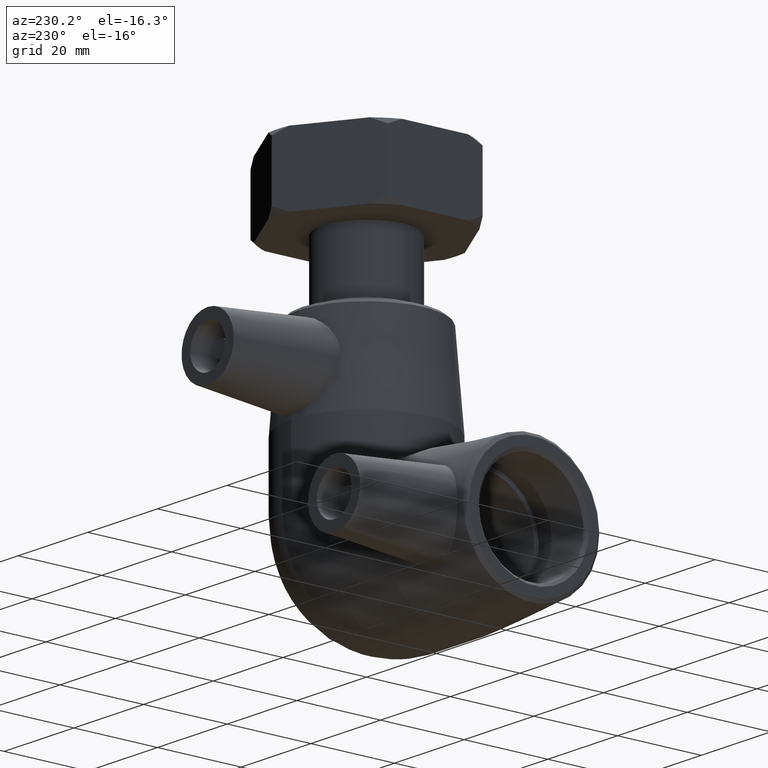
[diagram: clean part render]
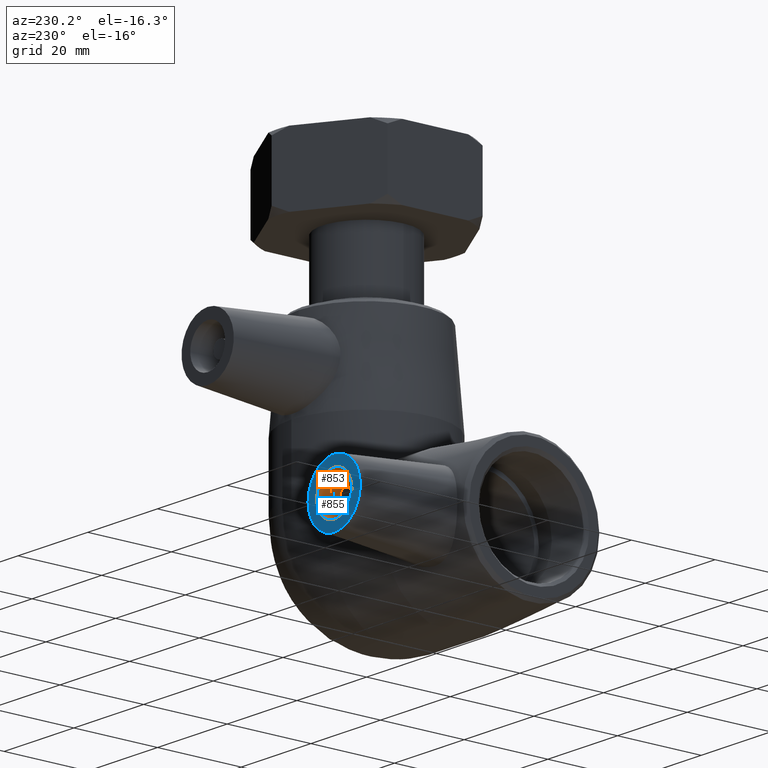
[diagram: same view with the hole feature highlighted: cylindrical wall and planar end face, labeled with their STEP entity ids]
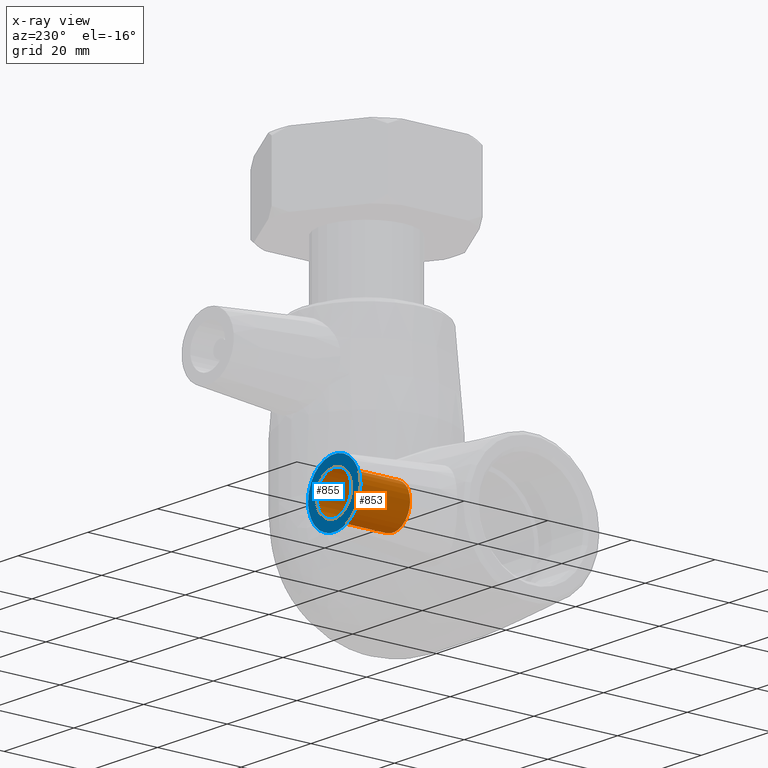
[diagram: x-ray of the same camera — body ghosted, the hole faces saturated]
A machine part, auxiliary view. The highlighted faces form one hole feature of diameter 10 mm: the cylindrical wall (entity #853, orange) and its adjacent planar end face (entity #855, blue) — they share a circular edge in the B-rep.
The next image is the same camera in x-ray (body ghosted, the hole faces saturated) — the bore reads through the body.
Wall:
#97=CYLINDRICAL_SURFACE('',#972,5.);
#159=FACE_BOUND('',#322,.T.);
#222=FACE_OUTER_BOUND('',#321,.T.);
#321=EDGE_LOOP('',(#760));
#322=EDGE_LOOP('',(#761));
#385=CIRCLE('',#973,5.);
#386=CIRCLE('',#974,5.);
#465=VERTEX_POINT('',#1616);
#466=VERTEX_POINT('',#1618);
#567=EDGE_CURVE('',#465,#465,#385,.T.);
#568=EDGE_CURVE('',#466,#466,#386,.T.);
#760=ORIENTED_EDGE('',*,*,#567,.T.);
#761=ORIENTED_EDGE('',*,*,#568,.F.);
#853=ADVANCED_FACE('',(#222,#159),#97,.F.);
#972=AXIS2_PLACEMENT_3D('',#1615,#1220,#1221);
#973=AXIS2_PLACEMENT_3D('',#1617,#1222,#1223);
#974=AXIS2_PLACEMENT_3D('',#1619,#1224,#1225);
#1220=DIRECTION('center_axis',(0.,-1.,0.));
#1221=DIRECTION('ref_axis',(-1.,0.,0.));
#1222=DIRECTION('center_axis',(0.,-1.,0.));
#1223=DIRECTION('ref_axis',(-1.,0.,0.));
#1224=DIRECTION('center_axis',(0.,-1.,0.));
#1225=DIRECTION('ref_axis',(-1.,0.,0.));
#1615=CARTESIAN_POINT('Origin',(-36.3,38.,0.));
#1616=CARTESIAN_POINT('',(-31.3,24.,-6.12323399573677E-16));
#1617=CARTESIAN_POINT('Origin',(-36.3,24.,0.));
#1618=CARTESIAN_POINT('',(-31.3,38.,-6.12323399573677E-16));
#1619=CARTESIAN_POINT('Origin',(-36.3,38.,0.));
End face:
#121=PLANE('',#976);
#161=FACE_BOUND('',#326,.T.);
#224=FACE_OUTER_BOUND('',#325,.T.);
#325=EDGE_LOOP('',(#764));
#326=EDGE_LOOP('',(#765));
#386=CIRCLE('',#974,5.);
#387=CIRCLE('',#977,7.5);
#466=VERTEX_POINT('',#1618);
#467=VERTEX_POINT('',#1622);
#568=EDGE_CURVE('',#466,#466,#386,.T.);
#569=EDGE_CURVE('',#467,#467,#387,.T.);
#764=ORIENTED_EDGE('',*,*,#569,.F.);
#765=ORIENTED_EDGE('',*,*,#568,.T.);
#855=ADVANCED_FACE('',(#224,#161),#121,.T.);
#974=AXIS2_PLACEMENT_3D('',#1619,#1224,#1225);
#976=AXIS2_PLACEMENT_3D('',#1621,#1228,#1229);
#977=AXIS2_PLACEMENT_3D('',#1623,#1230,#1231);
#1224=DIRECTION('center_axis',(0.,-1.,0.));
#1225=DIRECTION('ref_axis',(-1.,0.,0.));
#1228=DIRECTION('center_axis',(0.,1.,0.));
#1229=DIRECTION('ref_axis',(0.,0.,1.));
#1230=DIRECTION('center_axis',(0.,-1.,0.));
#1231=DIRECTION('ref_axis',(1.,0.,0.));
#1618=CARTESIAN_POINT('',(-31.3,38.,-6.12323399573677E-16));
#1619=CARTESIAN_POINT('Origin',(-36.3,38.,0.));
#1621=CARTESIAN_POINT('Origin',(-36.3,38.,1.2335811384724E-16));
#1622=CARTESIAN_POINT('',(-43.8,38.,9.18485099360515E-16));
#1623=CARTESIAN_POINT('Origin',(-36.3,38.,0.));